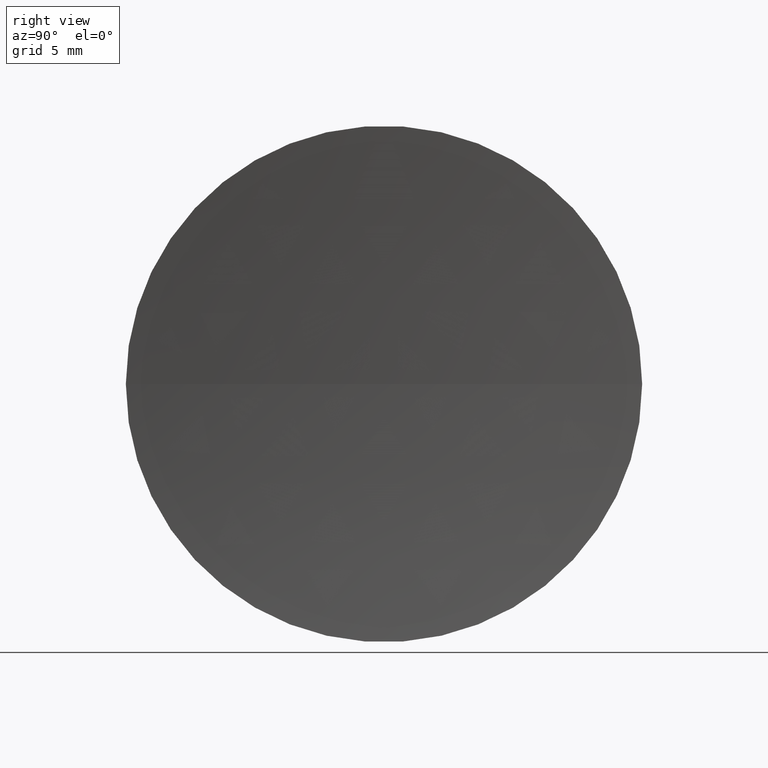
[diagram: clean part render]
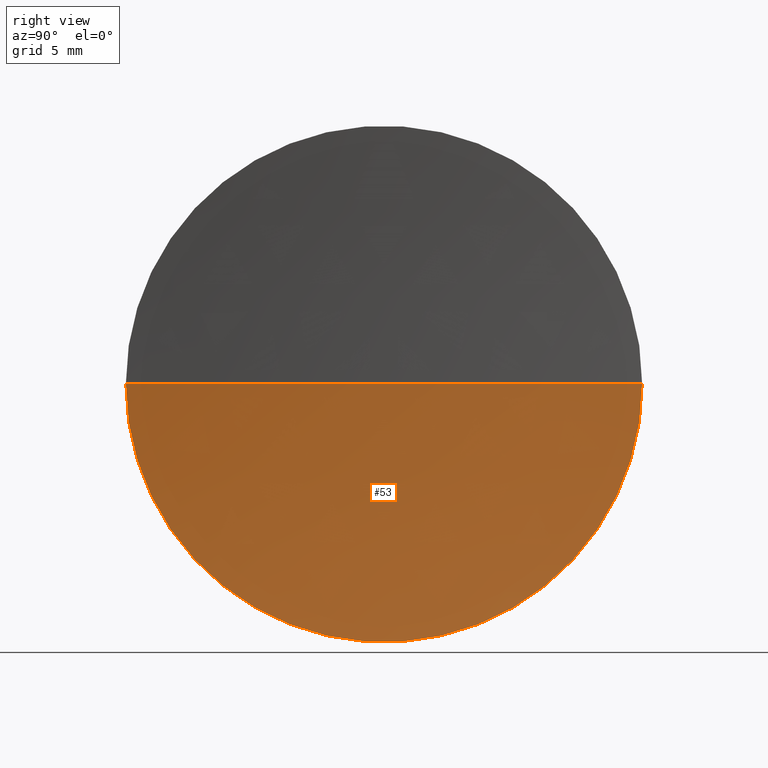
[diagram: same view with one face highlighted and labeled with its STEP entity id]
A machine part, right view. The second image highlights one B-rep face of the part: STEP entity #53.
In plain terms, the highlighted spherical surface has radius 103.28 mm.
Its self-contained STEP definition (entity closure, byte-faithful):
#1 = DIRECTION ( 'NONE',  ( -9.351536221073556900E-032, -1.224646799147353200E-016, 1.000000000000000000 ) ) ;
#9 = AXIS2_PLACEMENT_3D ( 'NONE', #83, #33, #149 ) ;
#10 = DIRECTION ( 'NONE',  ( 0.0000000000000000000, -1.000000000000000000, -1.224646799147353200E-016 ) ) ;
#11 = VERTEX_POINT ( 'NONE', #40 ) ;
#18 = ORIENTED_EDGE ( 'NONE', *, *, #112, .F. ) ;
#19 = ORIENTED_EDGE ( 'NONE', *, *, #51, .T. ) ;
#33 = DIRECTION ( 'NONE',  ( 0.0000000000000000000, 0.0000000000000000000, 1.000000000000000000 ) ) ;
#34 = CIRCLE ( 'NONE', #151, 103.2800000000000300 ) ;
#37 = DIRECTION ( 'NONE',  ( -1.000000000000000000, 7.636108817321419600E-016, -0.0000000000000000000 ) ) ;
#38 = FACE_OUTER_BOUND ( 'NONE', #49, .T. ) ;
#40 = CARTESIAN_POINT ( 'NONE',  ( 60.11741957956707700, 20.07872591329309800, 0.0000000000000000000 ) ) ;
#44 = ORIENTED_EDGE ( 'NONE', *, *, #97, .F. ) ;
#45 = CARTESIAN_POINT ( 'NONE',  ( 60.11741957956709100, 32.57872591329309100, 0.0000000000000000000 ) ) ;
#47 = CARTESIAN_POINT ( 'NONE',  ( 60.11741957956710500, 45.07872591329317700, 1.530808498934189900E-015 ) ) ;
#48 = VERTEX_POINT ( 'NONE', #115 ) ;
#49 = EDGE_LOOP ( 'NONE', ( #44, #19, #18 ) ) ;
#51 = EDGE_CURVE ( 'NONE', #91, #48, #109, .T. ) ;
#53 = ADVANCED_FACE ( 'NONE', ( #38 ), #100, .F. ) ;
#59 = CARTESIAN_POINT ( 'NONE',  ( 162.6381901580211000, 32.57872591329311300, 0.0000000000000000000 ) ) ;
#68 = CARTESIAN_POINT ( 'NONE',  ( 162.6381901580211000, 32.57872591329311300, 0.0000000000000000000 ) ) ;
#78 = AXIS2_PLACEMENT_3D ( 'NONE', #68, #1, #10 ) ;
#83 = CARTESIAN_POINT ( 'NONE',  ( 162.6381901580211000, 32.57872591329311300, 0.0000000000000000000 ) ) ;
#91 = VERTEX_POINT ( 'NONE', #47 ) ;
#95 = CIRCLE ( 'NONE', #148, 12.50000000000000000 ) ;
#97 = EDGE_CURVE ( 'NONE', #91, #11, #95, .T. ) ;
#100 = SPHERICAL_SURFACE ( 'NONE', #9, 103.2800000000000300 ) ;
#107 = DIRECTION ( 'NONE',  ( 0.0000000000000000000, -0.0000000000000000000, -1.000000000000000000 ) ) ;
#109 = CIRCLE ( 'NONE', #78, 103.2800000000000300 ) ;
#112 = EDGE_CURVE ( 'NONE', #11, #48, #34, .T. ) ;
#115 = CARTESIAN_POINT ( 'NONE',  ( 59.35819015802108800, 32.57872591329317700, 0.0000000000000000000 ) ) ;
#119 = DIRECTION ( 'NONE',  ( -5.551115123125782700E-016, -1.000000000000000000, 0.0000000000000000000 ) ) ;
#136 = DIRECTION ( 'NONE',  ( -1.000000000000000000, 0.0000000000000000000, 0.0000000000000000000 ) ) ;
#148 = AXIS2_PLACEMENT_3D ( 'NONE', #45, #37, #119 ) ;
#149 = DIRECTION ( 'NONE',  ( -8.062231491758977600E-016, -1.000000000000000000, 0.0000000000000000000 ) ) ;
#151 = AXIS2_PLACEMENT_3D ( 'NONE', #59, #107, #136 ) ;